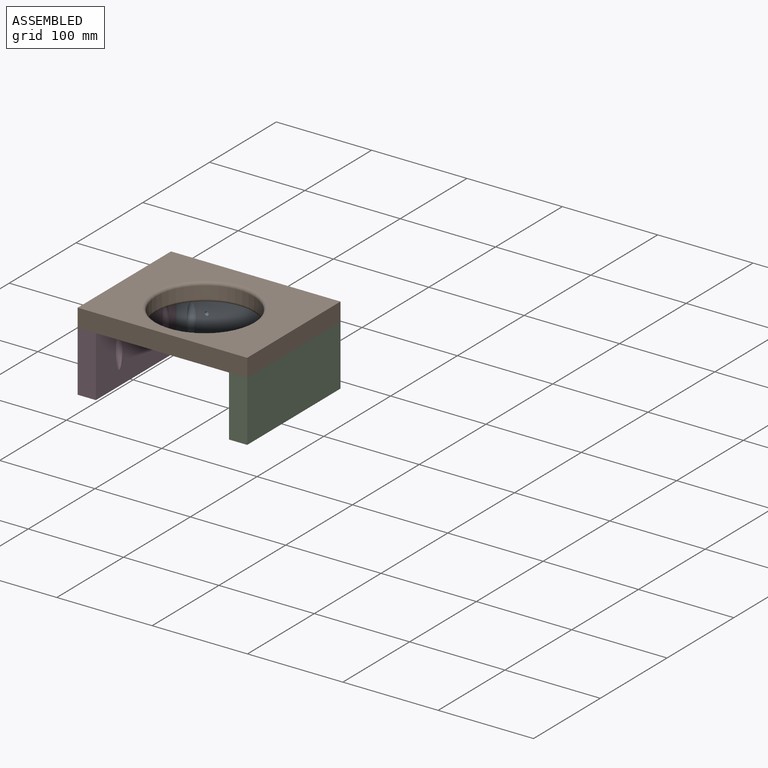
[diagram: assembled view]
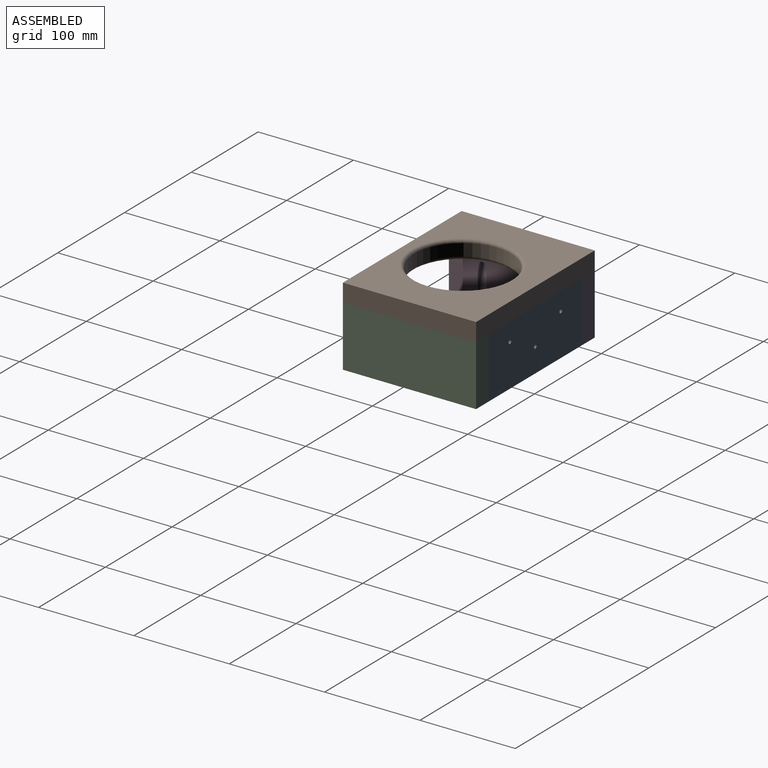
[diagram: assembled view, second angle]
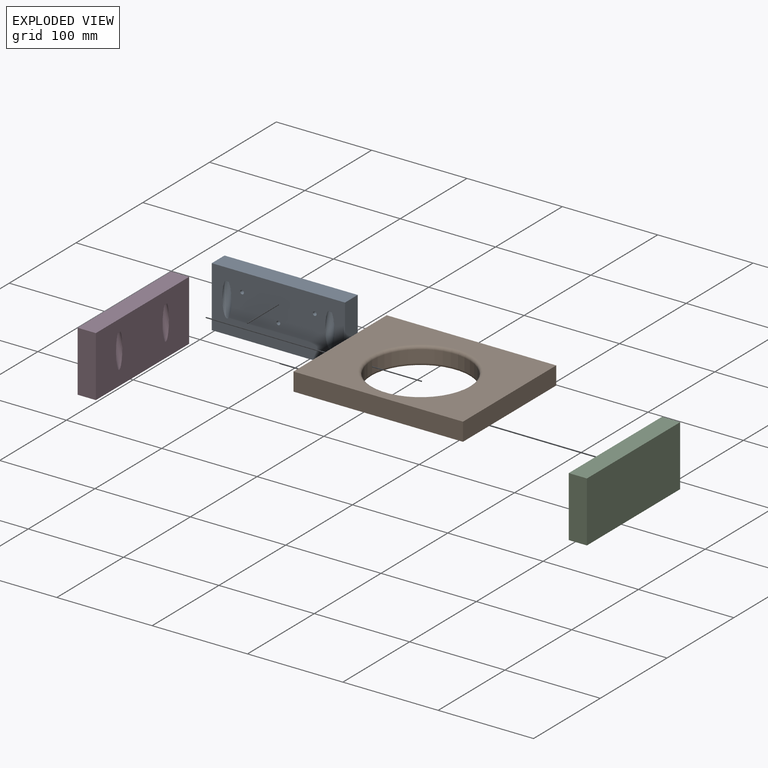
[diagram: exploded view]
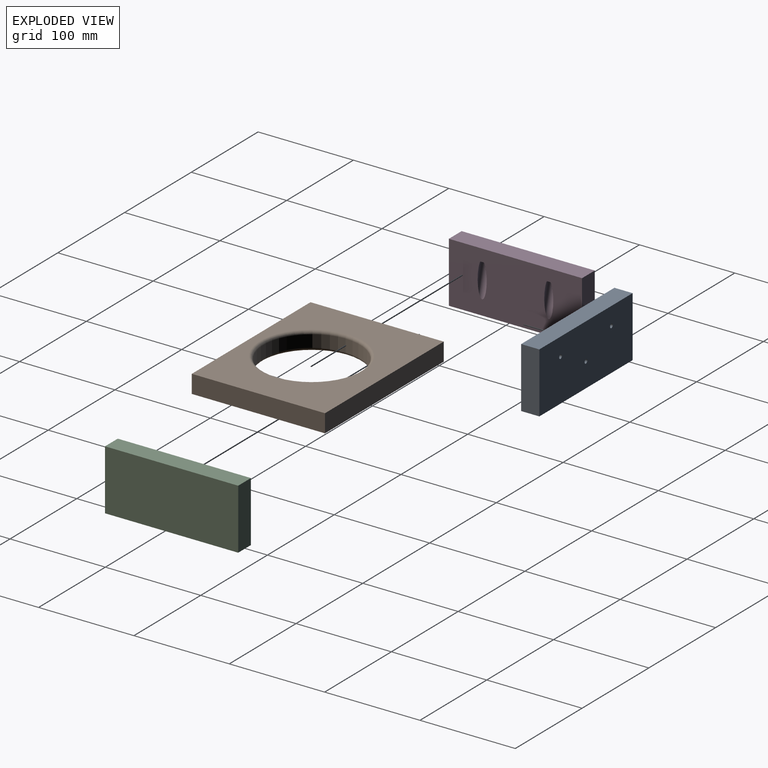
[diagram: exploded view, second angle]
ASSEMBLY  parts=4 mates=3
PART A: 17 faces, bbox 139.7x27.9x63.5 mm
  f0: plane 139.7x63.5mm, normal (0,-1,0), area 8290.7mm2, adj f1,f3,f4,f5,f6,f7,f8,f9
  f1: plane 139.7x19.05mm, normal (0,0,-1), area 2661.3mm2, adj f0,f2,f4,f5
  f2: plane 139.7x63.5mm, normal (0,1,0), area 8833.8mm2, adj f1,f3,f4,f5,f6,f7,f8
  f3: plane 139.7x19.05mm, normal (0,0,1), area 2661.3mm2, adj f0,f2,f4,f5
  f4: plane 63.5x19.05mm, normal (1,0,0), area 1209.7mm2, adj f0,f1,f2,f3
  f5: plane 63.5x19.05mm, normal (-1,0,0), area 1209.7mm2, adj f0,f1,f2,f3
  f6: cylinder r=1.98mm len=19.05mm, axis (0,-1,0), area 237.5mm2, adj f0,f2
  f7: cylinder r=1.98mm len=19.05mm, axis (0,-1,0), area 237.5mm2, adj f0,f2
  f8: cylinder r=1.98mm len=19.05mm, axis (0,-1,0), area 237.5mm2, adj f0,f2
  f9: cylinder r=4.76mm len=35.5mm, axis (0,0.26,0.97), area 492.7mm2, adj f0,f10
  f10: plane 9.53x8.83mm, normal (0,-0.26,-0.97), area 57.9mm2, adj f0,f9,f12
  f11: plane 3.97x3.83mm, normal (0,-0.26,-0.97), area 12.4mm2, adj f12
  f12: cylinder r=1.98mm len=13.29mm, axis (0,0.26,0.97), area 158.3mm2, adj f10,f11
  f13: cylinder r=4.76mm len=35.5mm, axis (0,0.26,0.97), area 492.7mm2, adj f0,f14
  f14: plane 9.53x8.83mm, normal (0,-0.26,-0.97), area 57.9mm2, adj f0,f13,f16
  f15: plane 3.97x3.83mm, normal (0,-0.26,-0.97), area 12.4mm2, adj f16
  f16: cylinder r=1.98mm len=13.29mm, axis (0,0.26,0.97), area 158.3mm2, adj f14,f15
PART B: 9 faces, bbox 177.8x139.7x19.1 mm
  f0: plane 177.8x19.05mm, normal (0,1,0), area 3387.1mm2, adj f1,f4,f5,f6
  f1: plane 139.7x19.05mm, normal (-1,0,0), area 2661.3mm2, adj f0,f2,f5,f6
  f2: plane 177.8x19.05mm, normal (0,-1,0), area 3387.1mm2, adj f1,f4,f5,f6
  f3: cylinder r=50.8mm len=101.6mm, axis (0,0,-1), area 4053.7mm2, adj f7,f8
  f4: plane 139.7x19.05mm, normal (1,0,0), area 2661.3mm2, adj f0,f2,f5,f6
  f5: plane 177.8x139.7mm, normal (0,0,1), area 15686.3mm2, adj f0,f1,f2,f4,f8
  f6: plane 177.8x139.7mm, normal (0,0,-1), area 15686.3mm2, adj f0,f1,f2,f4,f7
  f7: torus R=53.98mm, axis (0,0,1), area 1628mm2, adj f3,f6
  f8: torus R=53.98mm, axis (0,0,1), area 1628mm2, adj f3,f5
PART C: 14 faces, bbox 27.9x139.7x63.5 mm
  f0: plane 139.7x63.5mm, normal (1,0,0), area 8327.8mm2, adj f1,f3,f4,f5,f6,f7,f10,f11
  f1: plane 63.5x19.05mm, normal (0,-1,0), area 1209.7mm2, adj f0,f2,f4,f5
  f2: plane 139.7x63.5mm, normal (-1,0,0), area 8870.9mm2, adj f1,f3,f4,f5
  f3: plane 63.5x19.05mm, normal (0,1,0), area 1209.7mm2, adj f0,f2,f4,f5
  f4: plane 139.7x19.05mm, normal (0,0,-1), area 2661.3mm2, adj f0,f1,f2,f3
  f5: plane 139.7x19.05mm, normal (0,0,1), area 2661.3mm2, adj f0,f1,f2,f3
  f6: cylinder r=4.76mm len=35.5mm, axis (-0.26,0,0.97), area 492.7mm2, adj f0,f7
  f7: plane 9.53x8.83mm, normal (0.26,0,-0.97), area 57.9mm2, adj f0,f6,f9
  f8: plane 3.97x3.83mm, normal (0.26,0,-0.97), area 12.4mm2, adj f9
  f9: cylinder r=1.98mm len=13.29mm, axis (-0.26,0,0.97), area 158.3mm2, adj f7,f8
  f10: cylinder r=4.76mm len=35.5mm, axis (-0.26,0,0.97), area 492.7mm2, adj f0,f11
  f11: plane 9.53x8.83mm, normal (0.26,0,-0.97), area 57.9mm2, adj f0,f10,f13
  f12: plane 3.97x3.83mm, normal (0.26,0,-0.97), area 12.4mm2, adj f13
  f13: cylinder r=1.98mm len=13.29mm, axis (-0.26,0,0.97), area 158.3mm2, adj f11,f12
PART D: same geometry as C
PLACE A t=(71.7,4.99,-28.02)mm
PLACE B t=(71.7,4.99,-28.02)mm fixed
PLACE C rot(axis=(0,0,-1),180deg) t=(71.7,17.69,-28.02)mm
PLACE D t=(71.7,4.99,-28.02)mm
MATE fastened A.f2 <-> C.f1  axis (0,1,0) through (141.55,81.19,-28.02)mm
MATE fastened D.f2 <-> B.f1  axis (-1,0,0) through (-17.2,81.19,-28.02)mm
MATE fastened B.f4 <-> C.f2  axis (1,0,0) through (160.6,81.19,-28.02)mm
